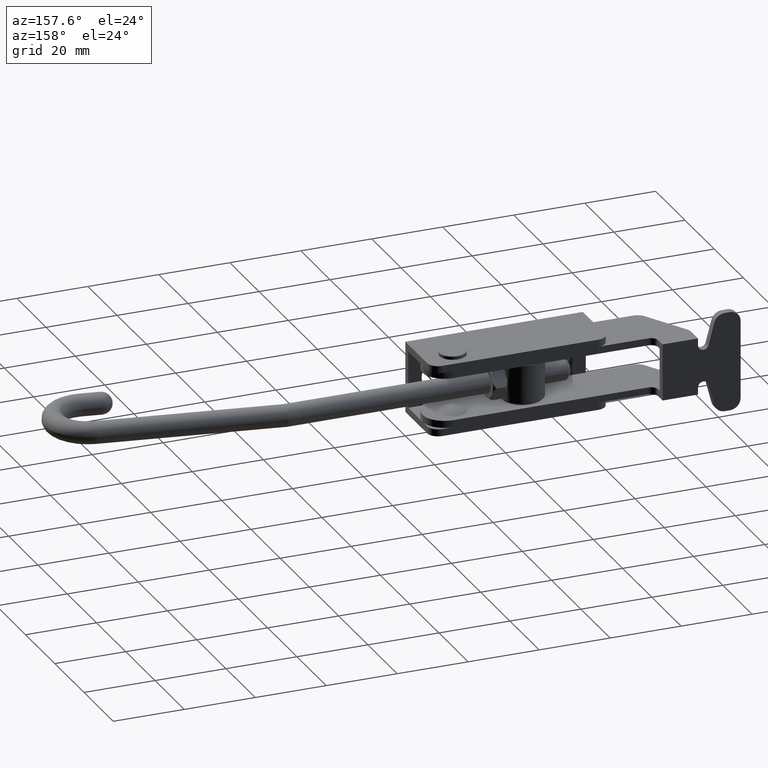
[diagram: clean part render]
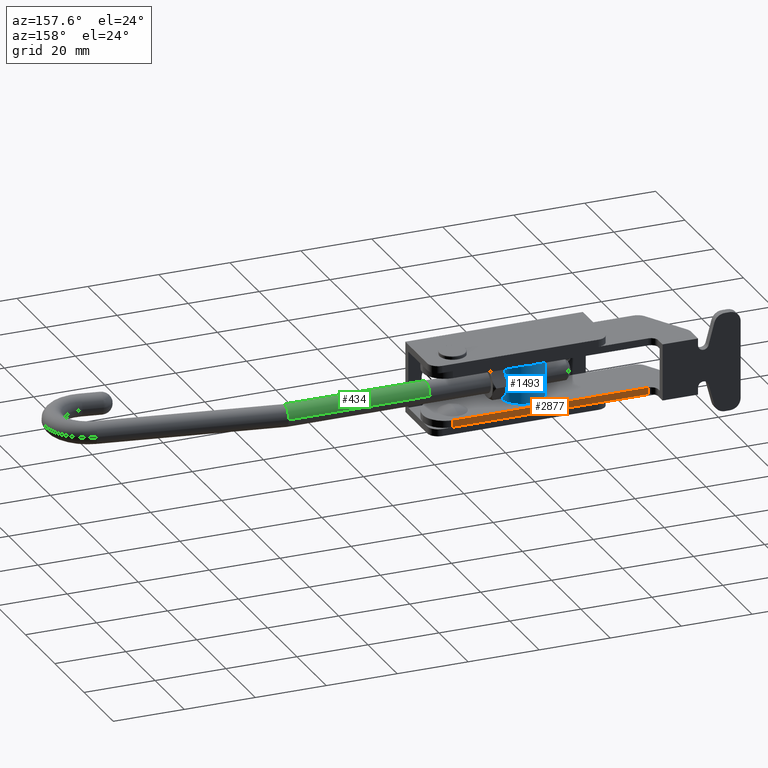
[diagram: same view with three faces highlighted in distinct colors, each labeled with its STEP entity id]
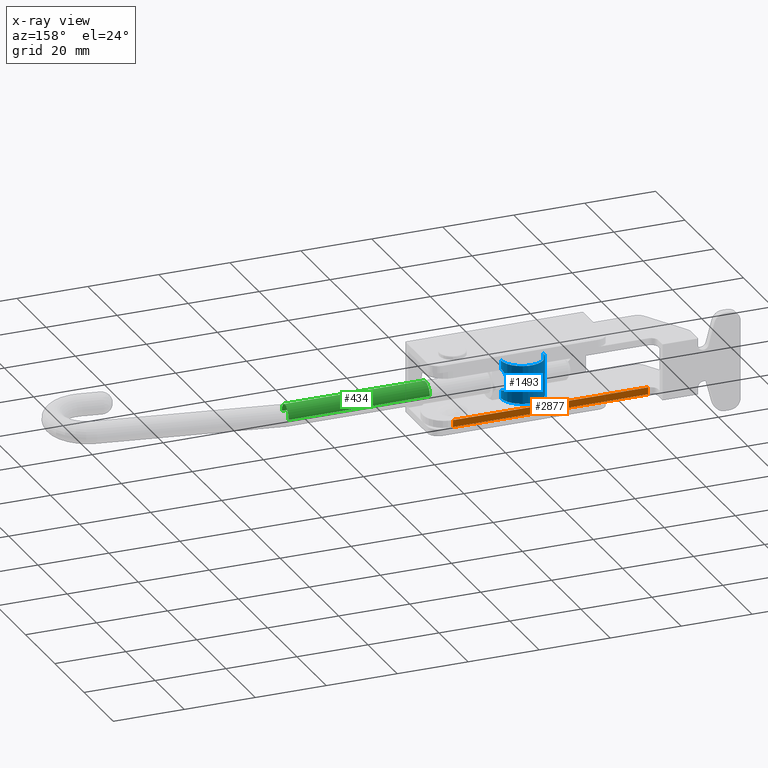
[diagram: x-ray of the same camera — body ghosted, the three highlighted faces saturated]
A machine part, auxiliary view with three faces highlighted in distinct colors.
The next image is the same camera in x-ray (body ghosted, the three faces saturated) — at least one of them is partly hidden behind the body in this view.
Their STEP definitions:

[orange] entity #2877 — the highlighted planar face has unit normal (-0, 1, 0).
#125 = DIRECTION ( 'NONE',  ( -1.000000000000000000, -9.588289758126483900E-017, 5.581018263953779000E-016 ) ) ;
#174 = CARTESIAN_POINT ( 'NONE',  ( -48.67761359179638000, 18.00000000000001800, -8.000000000000207800 ) ) ;
#201 = LINE ( 'NONE', #514, #396 ) ;
#252 = EDGE_CURVE ( 'NONE', #3502, #1863, #201, .T. ) ;
#381 = PLANE ( 'NONE',  #1351 ) ;
#396 = VECTOR ( 'NONE', #125, 1000.000000000000000 ) ;
#401 = DIRECTION ( 'NONE',  ( 1.000000000000000000, 9.588289758126483900E-017, 4.993013296730406300E-015 ) ) ;
#445 = EDGE_CURVE ( 'NONE', #4122, #1863, #3582, .T. ) ;
#493 = CARTESIAN_POINT ( 'NONE',  ( -60.99999999999991500, 18.00000000000002500, -6.000000000000310900 ) ) ;
#514 = CARTESIAN_POINT ( 'NONE',  ( -62.82842712474612100, 18.00000000000001800, -6.000000000000310000 ) ) ;
#556 = EDGE_CURVE ( 'NONE', #4122, #3688, #1750, .T. ) ;
#736 = DIRECTION ( 'NONE',  ( -1.000000000000000000, -9.588289758126485200E-017, 5.581018263953779000E-016 ) ) ;
#871 = DIRECTION ( 'NONE',  ( 5.581018263953780900E-016, -1.045111256635557800E-018, 1.000000000000000000 ) ) ;
#1075 = ORIENTED_EDGE ( 'NONE', *, *, #556, .F. ) ;
#1198 = VECTOR ( 'NONE', #2747, 1000.000000000000000 ) ;
#1351 = AXIS2_PLACEMENT_3D ( 'NONE', #4205, #2788, #736 ) ;
#1510 = CARTESIAN_POINT ( 'NONE',  ( -60.99999999999991500, 18.00000000000002500, -18.00000000000029100 ) ) ;
#1578 = VECTOR ( 'NONE', #401, 1000.000000000000000 ) ;
#1750 = LINE ( 'NONE', #174, #1578 ) ;
#1770 = CARTESIAN_POINT ( 'NONE',  ( -5.999999999999963600, 18.00000000000002100, -6.000000000000341900 ) ) ;
#1863 = VERTEX_POINT ( 'NONE', #493 ) ;
#2005 = FACE_OUTER_BOUND ( 'NONE', #2484, .T. ) ;
#2198 = CARTESIAN_POINT ( 'NONE',  ( -5.999999999999963600, 18.00000000000002100, -7.999999999999960000 ) ) ;
#2331 = LINE ( 'NONE', #2423, #1198 ) ;
#2334 = ORIENTED_EDGE ( 'NONE', *, *, #4085, .F. ) ;
#2423 = CARTESIAN_POINT ( 'NONE',  ( -5.999999999999977800, 18.00000000000002100, -18.00000000000032000 ) ) ;
#2484 = EDGE_LOOP ( 'NONE', ( #2744, #3377, #2334, #1075 ) ) ;
#2744 = ORIENTED_EDGE ( 'NONE', *, *, #445, .T. ) ;
#2747 = DIRECTION ( 'NONE',  ( 5.581018263953780900E-016, -1.045111256635557800E-018, 1.000000000000000000 ) ) ;
#2788 = DIRECTION ( 'NONE',  ( -9.588289758126485200E-017, 1.000000000000000000, 1.045111256635602500E-018 ) ) ;
#2877 = ADVANCED_FACE ( 'NONE', ( #2005 ), #381, .T. ) ;
#3313 = VECTOR ( 'NONE', #871, 1000.000000000000000 ) ;
#3377 = ORIENTED_EDGE ( 'NONE', *, *, #252, .F. ) ;
#3502 = VERTEX_POINT ( 'NONE', #1770 ) ;
#3582 = LINE ( 'NONE', #1510, #3313 ) ;
#3688 = VERTEX_POINT ( 'NONE', #2198 ) ;
#4085 = EDGE_CURVE ( 'NONE', #3688, #3502, #2331, .T. ) ;
#4122 = VERTEX_POINT ( 'NONE', #4155 ) ;
#4155 = CARTESIAN_POINT ( 'NONE',  ( -60.99999999999991500, 18.00000000000002500, -8.000000000000117200 ) ) ;
#4205 = CARTESIAN_POINT ( 'NONE',  ( -5.999999999999977800, 18.00000000000002100, -18.00000000000032000 ) ) ;

[blue] entity #1493 — the highlighted cylindrical surface (edge-blend (fillet) strip) has radius 6 mm, axis along (0, 0, 1).
#12 = CARTESIAN_POINT ( 'NONE',  ( -22.68701910287825600, 12.98790139164073700, -2.255092164947388500 ) ) ;
#22 = CARTESIAN_POINT ( 'NONE',  ( -22.98655505524783000, 13.69087578175724600, 1.340969047884013100 ) ) ;
#38 = ORIENTED_EDGE ( 'NONE', *, *, #1941, .T. ) ;
#80 = CARTESIAN_POINT ( 'NONE',  ( -22.35000000020823300, 11.00005000934558400, -5.400000000000348500 ) ) ;
#96 = CARTESIAN_POINT ( 'NONE',  ( -34.34999999979142900, 10.99994999065439300, 2.999999999999754400 ) ) ;
#111 = CARTESIAN_POINT ( 'NONE',  ( -33.71315554802128400, 13.69142467121684000, 1.339384577624744800 ) ) ;
#124 = CARTESIAN_POINT ( 'NONE',  ( -34.01387364099149800, 12.98537236444214000, -2.257245885583797600 ) ) ;
#182 = VERTEX_POINT ( 'NONE', #4068 ) ;
#350 = CARTESIAN_POINT ( 'NONE',  ( -22.35000000020822200, 11.00005000934558400, 7.699999999999651100 ) ) ;
#362 = CARTESIAN_POINT ( 'NONE',  ( -22.84237891487578100, 13.38333120843581100, -1.832406859702395700 ) ) ;
#375 = CARTESIAN_POINT ( 'NONE',  ( -22.84185707412872900, 13.38212226397514800, 1.833948270912011600 ) ) ;
#384 = DIRECTION ( 'NONE',  ( 0.9999999999652647900, 8.334890931662832800E-006, -5.782411586589363600E-016 ) ) ;
#430 = LINE ( 'NONE', #1024, #3061 ) ;
#436 = EDGE_CURVE ( 'NONE', #2308, #1436, #3369, .T. ) ;
#439 = CARTESIAN_POINT ( 'NONE',  ( -34.35000168254786200, 11.20184302903469500, 2.999999999999696700 ) ) ;
#453 = CARTESIAN_POINT ( 'NONE',  ( -33.60205353828086300, 13.90137202030666900, 0.7880859472499557300 ) ) ;
#471 = CARTESIAN_POINT ( 'NONE',  ( -34.15890793410729000, 12.51169437604504600, -2.598649266042097700 ) ) ;
#482 = ORIENTED_EDGE ( 'NONE', *, *, #4138, .F. ) ;
#557 = DIRECTION ( 'NONE',  ( 6.038933880856206700E-016, 1.037445465711697300E-016, 1.000000000000000000 ) ) ;
#567 = CARTESIAN_POINT ( 'NONE',  ( -28.34999999999981700, 10.99999999999999500, -5.400000000000345900 ) ) ;
#689 = CARTESIAN_POINT ( 'NONE',  ( -34.34999999979140000, 10.99994999065440400, 5.399999999999662000 ) ) ;
#695 = CARTESIAN_POINT ( 'NONE',  ( -34.34999999979139300, 10.99994999065440400, -5.400000000000342300 ) ) ;
#706 = CARTESIAN_POINT ( 'NONE',  ( -22.35000168296467400, 11.20194304772587700, -3.000000000000297100 ) ) ;
#719 = CARTESIAN_POINT ( 'NONE',  ( -22.98688931818567800, 13.69151407347597200, -1.339384577625347500 ) ) ;
#726 = CARTESIAN_POINT ( 'NONE',  ( -22.68615945551930200, 12.98546677970438500, 2.257245885583193200 ) ) ;
#737 = B_SPLINE_CURVE_WITH_KNOTS ( 'NONE', 3,
 ( #96, #439, #2844, #807, #3192, #1171, #3545, #1515, #3913, #1872, #4279, #2203, #111, #2536, #453, #2854, #825, #3212, #1184, #3556, #1534, #3926, #1882, #4301, #2219, #124, #2546, #471, #2864, #841, #3230, #1203, #3573, #1551 ),
 .UNSPECIFIED., .F., .F.,
 ( 4, 2, 2, 2, 2, 2, 2, 2, 2, 2, 2, 2, 2, 2, 2, 2, 4 ),
 ( 2.110382192020081100E-017, 0.0005964342858044720600, 0.001192868571608922900, 0.001789302857413373800, 0.002385737143217824900, 0.002982171429022276100, 0.003578605714826726800, 0.004175040000631177100, 0.004771474286435628200, 0.005367908572240079300, 0.005964342858044530500, 0.006560777143848980700, 0.007157211429653431900, 0.007753645715457883000, 0.008350080001262333300, 0.008946514287066784400, 0.009542948572871235600 ),
 .UNSPECIFIED. ) ;
#807 = CARTESIAN_POINT ( 'NONE',  ( -34.30121896686524300, 11.78807762757298300, 2.901395182369587400 ) ) ;
#825 = CARTESIAN_POINT ( 'NONE',  ( -33.54628957767192100, 13.99976243635494900, 0.2025540615598829000 ) ) ;
#841 = CARTESIAN_POINT ( 'NONE',  ( -34.27236376605060300, 11.97943892403774200, -2.842311461446213300 ) ) ;
#850 = ORIENTED_EDGE ( 'NONE', *, *, #3321, .F. ) ;
#873 = CIRCLE ( 'NONE', #2998, 6.000000000000007100 ) ;
#879 = AXIS2_PLACEMENT_3D ( 'NONE', #4142, #1048, #4080 ) ;
#913 = DIRECTION ( 'NONE',  ( 6.038933880856206700E-016, 1.037445465711697300E-016, 1.000000000000000000 ) ) ;
#1024 = CARTESIAN_POINT ( 'NONE',  ( -34.34999999979139300, 10.99994999065440400, 7.699999999999658200 ) ) ;
#1048 = DIRECTION ( 'NONE',  ( 6.038933880856206700E-016, 1.037445465711697300E-016, 1.000000000000000000 ) ) ;
#1068 = EDGE_CURVE ( 'NONE', #1707, #2308, #3942, .T. ) ;
#1079 = CARTESIAN_POINT ( 'NONE',  ( -23.09799482768717400, 13.90145957049036500, -0.7880859472505588000 ) ) ;
#1096 = CARTESIAN_POINT ( 'NONE',  ( -22.54111726631493100, 12.51179120906313400, 2.598649266041492800 ) ) ;
#1146 = ORIENTED_EDGE ( 'NONE', *, *, #1068, .T. ) ;
#1171 = CARTESIAN_POINT ( 'NONE',  ( -34.20073667899955400, 12.34274838169890900, 2.689888244236332300 ) ) ;
#1184 = CARTESIAN_POINT ( 'NONE',  ( -33.55790479410450900, 13.97989021638373900, -0.3990199680345530300 ) ) ;
#1203 = CARTESIAN_POINT ( 'NONE',  ( -34.34010760272945400, 11.39678011338340400, -2.980357866595499500 ) ) ;
#1336 = DIRECTION ( 'NONE',  ( 6.038933880856206700E-016, 1.037445465711697300E-016, 1.000000000000000000 ) ) ;
#1369 = EDGE_CURVE ( 'NONE', #1707, #182, #4244, .T. ) ;
#1429 = CARTESIAN_POINT ( 'NONE',  ( -22.39879417104339200, 11.78817683298547800, -2.901395182370190900 ) ) ;
#1436 = VERTEX_POINT ( 'NONE', #4362 ) ;
#1442 = CARTESIAN_POINT ( 'NONE',  ( -23.15376042843512700, 13.99984905695191500, -0.2025540615604866400 ) ) ;
#1451 = CARTESIAN_POINT ( 'NONE',  ( -22.42765256180509000, 11.97953764841374600, 2.842311461445610600 ) ) ;
#1493 = ADVANCED_FACE ( 'NONE', ( #2185 ), #2083, .T. ) ;
#1515 = CARTESIAN_POINT ( 'NONE',  ( -34.06413047837357800, 12.83769632655537600, 2.379239251597149400 ) ) ;
#1534 = CARTESIAN_POINT ( 'NONE',  ( -33.63439730783087400, 13.84297366171779600, -0.9777628536235875000 ) ) ;
#1551 = CARTESIAN_POINT ( 'NONE',  ( -34.34999999979140000, 10.99994999065440400, -3.000000000000292700 ) ) ;
#1707 = VERTEX_POINT ( 'NONE', #80 ) ;
#1776 = CARTESIAN_POINT ( 'NONE',  ( -22.49928570513559800, 12.34284591201652100, -2.689888244236934500 ) ) ;
#1790 = CARTESIAN_POINT ( 'NONE',  ( -23.14214488073859100, 13.97997703060658600, 0.3990199680339487900 ) ) ;
#1806 = CARTESIAN_POINT ( 'NONE',  ( -22.35989901234037800, 11.39687996711535000, 2.980357866594896000 ) ) ;
#1872 = CARTESIAN_POINT ( 'NONE',  ( -33.91017556637670800, 13.25954691367900300, 1.982736308920013800 ) ) ;
#1882 = CARTESIAN_POINT ( 'NONE',  ( -33.75945919811461200, 13.59844110117605500, -1.511794809577452700 ) ) ;
#1941 = EDGE_CURVE ( 'NONE', #3052, #4114, #430, .T. ) ;
#2016 = DIRECTION ( 'NONE',  ( 6.038933880856206700E-016, 1.037445465711697300E-016, 1.000000000000000000 ) ) ;
#2083 = CYLINDRICAL_SURFACE ( 'NONE', #879, 6.000000000000000000 ) ;
#2107 = CARTESIAN_POINT ( 'NONE',  ( -22.63590015641687000, 12.83779157960865200, -2.379239251597752500 ) ) ;
#2126 = CARTESIAN_POINT ( 'NONE',  ( -23.06565008465375800, 13.84306175107319200, 0.9777628536229828700 ) ) ;
#2134 = CARTESIAN_POINT ( 'NONE',  ( -22.35000000020822200, 11.00005000934558400, 2.999999999999690000 ) ) ;
#2185 = FACE_OUTER_BOUND ( 'NONE', #2327, .T. ) ;
#2203 = CARTESIAN_POINT ( 'NONE',  ( -33.75884366150419400, 13.59972458383784800, 1.509622939372151600 ) ) ;
#2219 = CARTESIAN_POINT ( 'NONE',  ( -33.91098785928748100, 13.25756109008510300, -1.985008441098043500 ) ) ;
#2226 = VERTEX_POINT ( 'NONE', #2687 ) ;
#2308 = VERTEX_POINT ( 'NONE', #695 ) ;
#2327 = EDGE_LOOP ( 'NONE', ( #1146, #2465, #2887, #38, #850, #2919, #482, #3529 ) ) ;
#2440 = CARTESIAN_POINT ( 'NONE',  ( -22.35000000020820100, 11.00005000934557500, -3.000000000000357500 ) ) ;
#2448 = DIRECTION ( 'NONE',  ( 6.038933880856206700E-016, 1.037445465711697300E-016, 1.000000000000000000 ) ) ;
#2451 = CARTESIAN_POINT ( 'NONE',  ( -22.78986210054962000, 13.25963960027886700, -1.982736308920618500 ) ) ;
#2465 = ORIENTED_EDGE ( 'NONE', *, *, #436, .T. ) ;
#2467 = CARTESIAN_POINT ( 'NONE',  ( -22.94058411808296300, 13.59853127531985400, 1.511794809576848500 ) ) ;
#2536 = CARTESIAN_POINT ( 'NONE',  ( -33.63487755226551500, 13.84205444188993900, 0.9800176523395132100 ) ) ;
#2546 = CARTESIAN_POINT ( 'NONE',  ( -34.06447974815364400, 12.83666885459588300, -2.380087568965362000 ) ) ;
#2687 = CARTESIAN_POINT ( 'NONE',  ( -22.35000000020821900, 11.00005000934558400, 5.399999999999654900 ) ) ;
#2721 = AXIS2_PLACEMENT_3D ( 'NONE', #567, #557, #384 ) ;
#2769 = CARTESIAN_POINT ( 'NONE',  ( -22.94119967608866200, 13.59981474772060400, -1.509622939372756000 ) ) ;
#2783 = CARTESIAN_POINT ( 'NONE',  ( -22.78904977453571900, 13.25765379022599400, 1.985008441097439300 ) ) ;
#2844 = CARTESIAN_POINT ( 'NONE',  ( -34.33984784453254200, 11.39974534144439900, 2.979832592711382700 ) ) ;
#2849 = EDGE_CURVE ( 'NONE', #3277, #2226, #4159, .T. ) ;
#2854 = CARTESIAN_POINT ( 'NONE',  ( -33.55793388859456200, 13.97984069728822700, 0.3994794123732012800 ) ) ;
#2864 = CARTESIAN_POINT ( 'NONE',  ( -34.20141679522848200, 12.33963228979720800, -2.691354009131222500 ) ) ;
#2887 = ORIENTED_EDGE ( 'NONE', *, *, #3053, .F. ) ;
#2919 = ORIENTED_EDGE ( 'NONE', *, *, #2849, .F. ) ;
#2994 = CARTESIAN_POINT ( 'NONE',  ( -22.35000000020822200, 11.00005000934558400, 2.999999999999690000 ) ) ;
#2998 = AXIS2_PLACEMENT_3D ( 'NONE', #3359, #1336, #3729 ) ;
#3052 = VERTEX_POINT ( 'NONE', #4263 ) ;
#3053 = EDGE_CURVE ( 'NONE', #3052, #1436, #737, .T. ) ;
#3061 = VECTOR ( 'NONE', #2016, 1000.000000000000000 ) ;
#3107 = CARTESIAN_POINT ( 'NONE',  ( -23.06516982489600700, 13.84214253925103200, -0.9800176523401160600 ) ) ;
#3119 = CARTESIAN_POINT ( 'NONE',  ( -22.63555086950910700, 12.83676411347156000, 2.380087568964758000 ) ) ;
#3192 = CARTESIAN_POINT ( 'NONE',  ( -34.27223025135496200, 11.98044977101420500, 2.842045811756125100 ) ) ;
#3212 = CARTESIAN_POINT ( 'NONE',  ( -33.54606689273542500, 14.00014814564328000, -0.1967584924232333400 ) ) ;
#3230 = CARTESIAN_POINT ( 'NONE',  ( -34.30116963624967500, 11.78892554226219300, -2.901297177998240600 ) ) ;
#3277 = VERTEX_POINT ( 'NONE', #2994 ) ;
#3280 = DIRECTION ( 'NONE',  ( 6.038933880856206700E-016, 1.037445465711697300E-016, 1.000000000000000000 ) ) ;
#3291 = VECTOR ( 'NONE', #3280, 1000.000000000000000 ) ;
#3321 = EDGE_CURVE ( 'NONE', #2226, #4114, #873, .T. ) ;
#3359 = CARTESIAN_POINT ( 'NONE',  ( -28.34999999999981000, 10.99999999999999500, 5.399999999999658400 ) ) ;
#3369 = LINE ( 'NONE', #3961, #3537 ) ;
#3444 = CARTESIAN_POINT ( 'NONE',  ( -22.36015881996696600, 11.39984519084581600, -2.979832592711985800 ) ) ;
#3454 = CARTESIAN_POINT ( 'NONE',  ( -23.14211578542306900, 13.97992751199608800, -0.3994794123738044100 ) ) ;
#3465 = CARTESIAN_POINT ( 'NONE',  ( -22.49860553696218800, 12.33972983145264600, 2.691354009130619800 ) ) ;
#3529 = ORIENTED_EDGE ( 'NONE', *, *, #1369, .F. ) ;
#3537 = VECTOR ( 'NONE', #913, 1000.000000000000000 ) ;
#3545 = CARTESIAN_POINT ( 'NONE',  ( -34.15829425500054100, 12.51397911473065600, 2.597268354183364500 ) ) ;
#3556 = CARTESIAN_POINT ( 'NONE',  ( -33.60193998854639800, 13.90157619284131700, -0.7872883223721050000 ) ) ;
#3573 = CARTESIAN_POINT ( 'NONE',  ( -34.35000166005158200, 11.19914397997796500, -3.000000000000294900 ) ) ;
#3593 = B_SPLINE_CURVE_WITH_KNOTS ( 'NONE', 3,
 ( #2440, #706, #3444, #1429, #3815, #1776, #4181, #2107, #12, #2451, #362, #2769, #719, #3107, #1079, #3454, #1442, #3830, #1790, #4195, #2126, #22, #2467, #375, #2783, #726, #3119, #1096, #3465, #1451, #3845, #1806, #4211, #2134 ),
 .UNSPECIFIED., .F., .F.,
 ( 4, 2, 2, 2, 2, 2, 2, 2, 2, 2, 2, 2, 2, 2, 2, 2, 4 ),
 ( 1.932193069600340100E-017, 0.0005964342858044699000, 0.001192868571608920500, 0.001789302857413371000, 0.002385737143217821900, 0.002982171429022272600, 0.003578605714826722900, 0.004175040000631173600, 0.004771474286435623900, 0.005367908572240074100, 0.005964342858044525300, 0.006560777143848975500, 0.007157211429653425800, 0.007753645715457877000, 0.008350080001262328100, 0.008946514287066777500, 0.009542948572871228600 ),
 .UNSPECIFIED. ) ;
#3729 = DIRECTION ( 'NONE',  ( 0.9999999999652647900, 8.334890931662814100E-006, -5.782411586589349800E-016 ) ) ;
#3815 = CARTESIAN_POINT ( 'NONE',  ( -22.42778609335130500, 11.98054849316441700, -2.842045811756728200 ) ) ;
#3830 = CARTESIAN_POINT ( 'NONE',  ( -23.15398311980128200, 14.00023476252808200, 0.1967584924226293600 ) ) ;
#3845 = CARTESIAN_POINT ( 'NONE',  ( -22.39884351579350500, 11.78902474685224500, 2.901297177997637100 ) ) ;
#3913 = CARTESIAN_POINT ( 'NONE',  ( -34.01301403421712200, 12.98780699070828800, 2.255092164946785000 ) ) ;
#3926 = CARTESIAN_POINT ( 'NONE',  ( -33.71348980031890400, 13.69078637392610900, -1.340969047884617900 ) ) ;
#3942 = CIRCLE ( 'NONE', #2721, 5.999999999999992900 ) ;
#3961 = CARTESIAN_POINT ( 'NONE',  ( -34.34999999979139300, 10.99994999065440400, 7.699999999999658200 ) ) ;
#4068 = CARTESIAN_POINT ( 'NONE',  ( -22.35000000020820100, 11.00005000934557500, -3.000000000000357500 ) ) ;
#4080 = DIRECTION ( 'NONE',  ( 0.9999999999652647900, 8.334890931662822600E-006, -5.782411586589356700E-016 ) ) ;
#4114 = VERTEX_POINT ( 'NONE', #689 ) ;
#4138 = EDGE_CURVE ( 'NONE', #182, #3277, #3593, .T. ) ;
#4142 = CARTESIAN_POINT ( 'NONE',  ( -28.34999999999981000, 10.99999999999999500, 7.699999999999654700 ) ) ;
#4159 = LINE ( 'NONE', #350, #4280 ) ;
#4181 = CARTESIAN_POINT ( 'NONE',  ( -22.54173098350768700, 12.51407593751852700, -2.597268354183968500 ) ) ;
#4195 = CARTESIAN_POINT ( 'NONE',  ( -23.09810838082513100, 13.90166374113213600, 0.7872883223715005900 ) ) ;
#4211 = CARTESIAN_POINT ( 'NONE',  ( -22.35000166046840400, 11.19924399866914500, 2.999999999999691800 ) ) ;
#4244 = LINE ( 'NONE', #4356, #3291 ) ;
#4263 = CARTESIAN_POINT ( 'NONE',  ( -34.34999999979142900, 10.99994999065439300, 2.999999999999754400 ) ) ;
#4279 = CARTESIAN_POINT ( 'NONE',  ( -33.85766081396996400, 13.38323939726259800, 1.832406859701792000 ) ) ;
#4280 = VECTOR ( 'NONE', #2448, 1000.000000000000000 ) ;
#4301 = CARTESIAN_POINT ( 'NONE',  ( -33.85818263456410900, 13.38203044410313300, -1.833948270912615100 ) ) ;
#4356 = CARTESIAN_POINT ( 'NONE',  ( -22.35000000020822200, 11.00005000934558400, 7.699999999999651100 ) ) ;
#4362 = CARTESIAN_POINT ( 'NONE',  ( -34.34999999979140000, 10.99994999065440400, -3.000000000000292700 ) ) ;

[green] entity #434 — the highlighted cylindrical surface (edge-blend (fillet) strip) has radius 3 mm, axis along (-1, -0, 0).
#11 = LINE ( 'NONE', #2901, #721 ) ;
#62 = CARTESIAN_POINT ( 'NONE',  ( 38.65244098357789000, 14.00055845814197900, -3.417637090092332600E-013 ) ) ;
#71 = EDGE_CURVE ( 'NONE', #2018, #1980, #3532, .T. ) ;
#78 = VECTOR ( 'NONE', #1617, 1000.000000000000100 ) ;
#238 = VERTEX_POINT ( 'NONE', #2660 ) ;
#253 = CARTESIAN_POINT ( 'NONE',  ( -1.160025005617002100, 14.00022662558022700, -3.173537955694119500E-013 ) ) ;
#434 = ADVANCED_FACE ( 'NONE', ( #3468 ), #3363, .T. ) ;
#478 = DIRECTION ( 'NONE',  ( 0.9999999999652649000, 8.334890932099390200E-006, -6.038942527641247900E-016 ) ) ;
#621 = ORIENTED_EDGE ( 'NONE', *, *, #71, .T. ) ;
#721 = VECTOR ( 'NONE', #3618, 1000.000000000000100 ) ;
#893 = CARTESIAN_POINT ( 'NONE',  ( 46.87528137162584600, 11.00062699451555800, -3.468553517373665500E-013 ) ) ;
#905 = DIRECTION ( 'NONE',  ( -0.9999999999652649000, -8.334890931694223800E-006, 6.038942527641247900E-016 ) ) ;
#996 = DIRECTION ( 'NONE',  ( 8.334890932530179300E-006, -0.9999999999652647900, -4.197725880002832700E-017 ) ) ;
#1005 = ORIENTED_EDGE ( 'NONE', *, *, #4083, .F. ) ;
#1350 = VERTEX_POINT ( 'NONE', #4345 ) ;
#1617 = DIRECTION ( 'NONE',  ( -0.9999999999652647900, -8.334890931694223800E-006, 6.038942527641246900E-016 ) ) ;
#1665 = CARTESIAN_POINT ( 'NONE',  ( 46.87525636695304600, 14.00062699441135400, -3.463620259212222300E-013 ) ) ;
#1748 = CARTESIAN_POINT ( 'NONE',  ( 38.12755901178616800, 8.000554083099579800, -3.413311751157773100E-013 ) ) ;
#1769 = AXIS2_PLACEMENT_3D ( 'NONE', #2548, #478, #2870 ) ;
#1980 = VERTEX_POINT ( 'NONE', #253 ) ;
#2018 = VERTEX_POINT ( 'NONE', #62 ) ;
#2260 = ORIENTED_EDGE ( 'NONE', *, *, #4322, .F. ) ;
#2353 = EDGE_CURVE ( 'NONE', #1980, #1350, #3846, .T. ) ;
#2548 = CARTESIAN_POINT ( 'NONE',  ( -1.160000000944218200, 11.00022662568443000, -3.178471213855562200E-013 ) ) ;
#2660 = CARTESIAN_POINT ( 'NONE',  ( 38.12755901178616800, 8.000554083099579800, -3.413311751157773100E-013 ) ) ;
#2870 = DIRECTION ( 'NONE',  ( -8.334890932096503500E-006, 0.9999999999652647900, 4.197725880002835100E-017 ) ) ;
#2901 = CARTESIAN_POINT ( 'NONE',  ( 46.87530637629864600, 8.000626994619761200, -3.469812835137666300E-013 ) ) ;
#2984 = EDGE_LOOP ( 'NONE', ( #1005, #621, #3190, #2260 ) ) ;
#3190 = ORIENTED_EDGE ( 'NONE', *, *, #2353, .T. ) ;
#3363 = CYLINDRICAL_SURFACE ( 'NONE', #4299, 3.000000000000001800 ) ;
#3402 = CARTESIAN_POINT ( 'NONE',  ( 38.65244098357789000, 14.00055845814197900, -3.417637090092332600E-013 ) ) ;
#3468 = FACE_OUTER_BOUND ( 'NONE', #2984, .T. ) ;
#3532 = LINE ( 'NONE', #1665, #78 ) ;
#3618 = DIRECTION ( 'NONE',  ( -0.9999999999652647900, -8.334890931694223800E-006, 6.038942527641246900E-016 ) ) ;
#3793 = CARTESIAN_POINT ( 'NONE',  ( 38.12755901178617500, 8.000554083099579800, 5.999999999999660700 ) ) ;
#3846 = CIRCLE ( 'NONE', #1769, 3.000000000000000000 ) ;
#3901 =( BOUNDED_CURVE ( )  B_SPLINE_CURVE ( 3, ( #3402, #4495, #3793, #1748 ),
 .UNSPECIFIED., .F., .F. ) 
 B_SPLINE_CURVE_WITH_KNOTS ( ( 4, 4 ),
 ( 3.141592653589793100, 6.283185307179586200 ),
 .UNSPECIFIED. ) 
 CURVE ( )  GEOMETRIC_REPRESENTATION_ITEM ( )  RATIONAL_B_SPLINE_CURVE ( ( 1.000000000000000000, 0.3333333333333333700, 0.3333333333333333700, 1.000000000000000000 ) ) 
 REPRESENTATION_ITEM ( '' )  );
#4083 = EDGE_CURVE ( 'NONE', #2018, #238, #3901, .T. ) ;
#4299 = AXIS2_PLACEMENT_3D ( 'NONE', #893, #905, #996 ) ;
#4322 = EDGE_CURVE ( 'NONE', #238, #1350, #11, .T. ) ;
#4345 = CARTESIAN_POINT ( 'NONE',  ( -1.159974996271413600, 8.000226625788634700, -3.179730531619563100E-013 ) ) ;
#4495 = CARTESIAN_POINT ( 'NONE',  ( 38.65244098357789000, 14.00055845814198100, 5.999999999999660700 ) ) ;